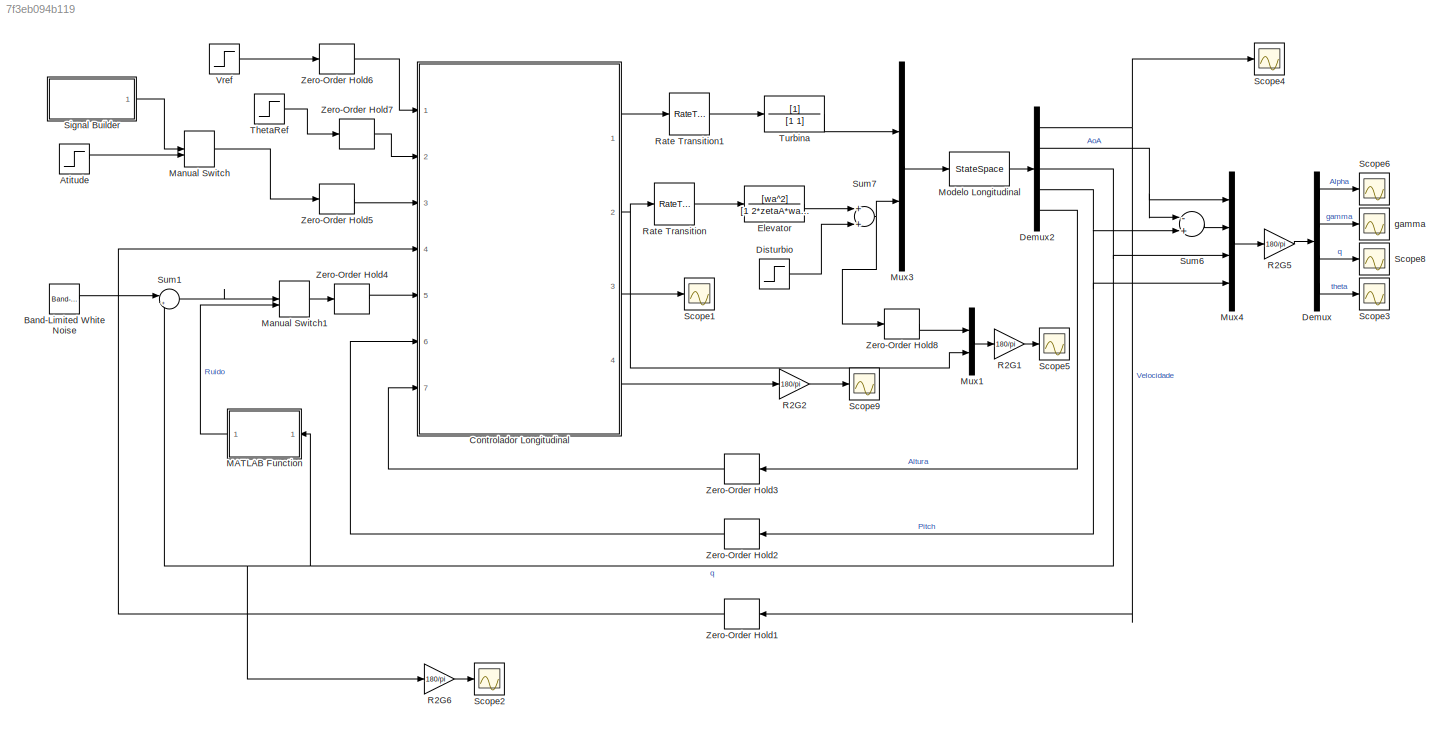
MODEL slx_7f3eb094b119
KIND model
CONFIG InitFcn = Alt = 2;\nVel =4;\nwa = 72;\nzetaA = 0.7;\nload('../../Ganhos/BV9_30_03/GanhosTanqueHalf')\nload('../../Dados_Input_Ganhos/BV9_30_03/sstanqueHalf_0')\n[n,d] = butter(2,15*2*pi,'s')\nF = tf(n,d);\nFd = c2d(F,0.01,'tustin');\n[num, dem] = tfdata(Fd);\nTa = 100;
BLOCK [Step] Atitude
  After = 100*1
  SampleTime = 0
BLOCK [Reference] Band-Limited White Noise  REF=simulink/Sources/Band-Limited
White Noise
  Cov = 0.004^2*0.002
  Ports = [0, 1]
  SourceBlock = simulink/Sources/Band-Limited\nWhite Noise
  SourceType = Band-Limited White Noise.
  Ts = 0.002
  VectorParams1D = on
  seed = [23341]
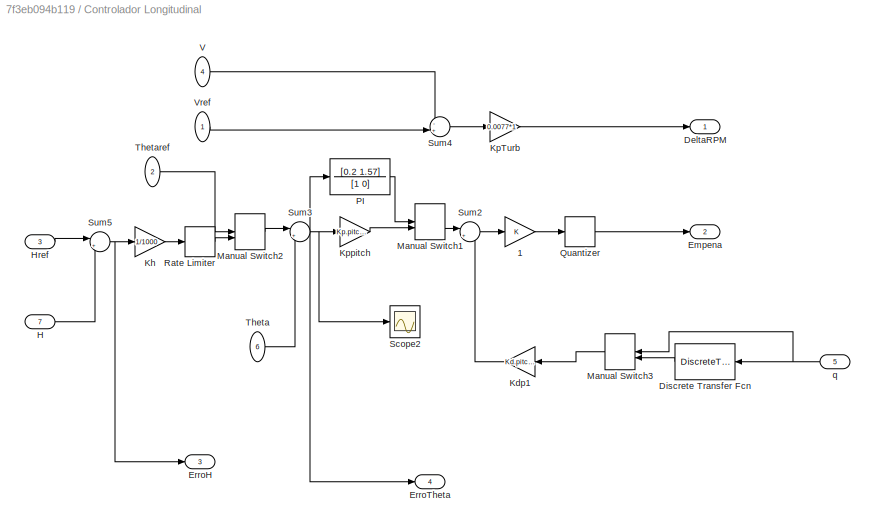
BLOCK [SubSystem] Controlador Longitudinal
  FunctionWithSeparateData = off
  MaskHideContents = off
  MinAlgLoopOccurrences = off
  Opaque = off
  Ports = [7, 4]
  PropExecContextOutsideSubsystem = off
  RTWSystemCode = Auto
  RequestExecContextInheritance = off
BLOCK [Gain] Controlador Longitudinal/1
  OutDataTypeStr = Inherit: Inherit via internal rule
  ParamDataTypeStr = Inherit: Inherit via internal rule
  SaturateOnIntegerOverflow = off
BLOCK [Outport] Controlador Longitudinal/DeltaRPM
  IconDisplay = Port number
BLOCK [DiscreteTransferFcn] Controlador Longitudinal/Discrete Transfer Fcn
  Denominator = [dem{1}]
  InputPortMap = u0
  Numerator = [num{1}]
  Ports = [1, 1]
BLOCK [Outport] Controlador Longitudinal/Empena
  IconDisplay = Port number
  Port = 2
BLOCK [Outport] Controlador Longitudinal/ErroH
  IconDisplay = Port number
  Port = 3
BLOCK [Outport] Controlador Longitudinal/ErroTheta
  IconDisplay = Port number
  Port = 4
BLOCK [Inport] Controlador Longitudinal/H
  IconDisplay = Port number
  Port = 7
BLOCK [Inport] Controlador Longitudinal/Href
  IconDisplay = Port number
  Port = 3
BLOCK [Gain] Controlador Longitudinal/Kdp1
  Gain = Kd.pitch(Alt,Vel)
  OutDataTypeStr = Inherit: Inherit via internal rule
  ParamDataTypeStr = Inherit: Inherit via internal rule
  SaturateOnIntegerOverflow = off
BLOCK [Gain] Controlador Longitudinal/Kh
  Gain = 1/1000
  OutDataTypeStr = Inherit: Inherit via internal rule
  ParamDataTypeStr = Inherit: Inherit via internal rule
  SaturateOnIntegerOverflow = off
BLOCK [Gain] Controlador Longitudinal/KpTurb
  Gain = 0.0077*1
  OutDataTypeStr = Inherit: Inherit via internal rule
  ParamDataTypeStr = Inherit: Inherit via internal rule
  SaturateOnIntegerOverflow = off
BLOCK [Gain] Controlador Longitudinal/Kppitch
  Gain = Kp.pitch(Alt,Vel)
  OutDataTypeStr = Inherit: Inherit via internal rule
  ParamDataTypeStr = Inherit: Inherit via internal rule
  SaturateOnIntegerOverflow = off
BLOCK [ManualSwitch] Controlador Longitudinal/Manual Switch1
  CurrentSetting = 0
BLOCK [ManualSwitch] Controlador Longitudinal/Manual Switch2
  CurrentSetting = 0
BLOCK [ManualSwitch] Controlador Longitudinal/Manual Switch3
  CurrentSetting = 0
BLOCK [TransferFcn] Controlador Longitudinal/PI
  Commented = through
  Denominator = [1 0]
  Numerator = [0.2 1.57]
BLOCK [Quantizer] Controlador Longitudinal/Quantizer
  QuantizationInterval = 0.005*pi/180
BLOCK [RateLimiter] Controlador Longitudinal/Rate Limiter
  FallingSlewLimit = -1*pi/180
  RisingSlewLimit = 1*pi/180
  SampleTimeMode = inherited
BLOCK [Scope] Controlador Longitudinal/Scope2
  DataFormat = StructureWithTime
  Floating = off
  LimitDataPoints = off
  NumInputPorts = 1
  Ports = [1]
  SampleTime = 0
  SaveName = ScopeData7
  ShowLegends = off
  ZoomMode = yonly
BLOCK [Sum] Controlador Longitudinal/Sum2
  IconShape = round
  InputSameDT = off
  Inputs = |+-
  OutDataTypeStr = Inherit: Inherit via internal rule
  Ports = [2, 1]
  SaturateOnIntegerOverflow = off
BLOCK [Sum] Controlador Longitudinal/Sum3
  IconShape = round
  InputSameDT = off
  Inputs = |+-
  OutDataTypeStr = Inherit: Inherit via internal rule
  Ports = [2, 1]
  SaturateOnIntegerOverflow = off
BLOCK [Sum] Controlador Longitudinal/Sum4
  IconShape = round
  InputSameDT = off
  Inputs = -+|
  OutDataTypeStr = Inherit: Inherit via internal rule
  Ports = [2, 1]
  SaturateOnIntegerOverflow = off
BLOCK [Sum] Controlador Longitudinal/Sum5
  IconShape = round
  InputSameDT = off
  Inputs = |+-
  OutDataTypeStr = Inherit: Inherit via internal rule
  Ports = [2, 1]
  SaturateOnIntegerOverflow = off
BLOCK [Inport] Controlador Longitudinal/Theta
  IconDisplay = Port number
  Port = 6
BLOCK [Inport] Controlador Longitudinal/Thetaref
  IconDisplay = Port number
  Port = 2
BLOCK [Inport] Controlador Longitudinal/V
  IconDisplay = Port number
  Port = 4
BLOCK [Inport] Controlador Longitudinal/Vref
  IconDisplay = Port number
BLOCK [Inport] Controlador Longitudinal/q
  IconDisplay = Port number
  Port = 5
BLOCK [Demux] Demux
  DisplayOption = bar
  Ports = [1, 4]
BLOCK [Demux] Demux2
  DisplayOption = bar
  Outputs = 5
  Ports = [1, 5]
BLOCK [Step] Disturbio
  After = pi/180*0
  SampleTime = 0
BLOCK [TransferFcn] Elevator
  Denominator = [1 2*zetaA*wa wa^2]
  Numerator = [wa^2]
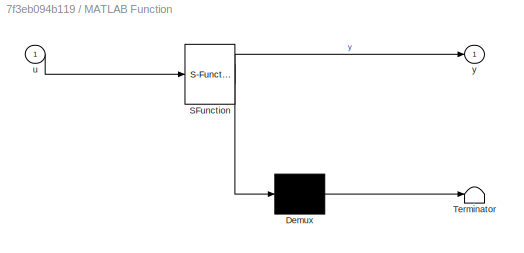
BLOCK [SubSystem] MATLAB Function
  ErrorFcn = Stateflow.Translate.translate
  FunctionWithSeparateData = off
  MaskHideContents = off
  MinAlgLoopOccurrences = off
  Opaque = off
  PermitHierarchicalResolution = ExplicitOnly
  Ports = [1, 1]
  PropExecContextOutsideSubsystem = off
  RTWSystemCode = Auto
  RequestExecContextInheritance = off
  SFBlockType = MATLAB Function
  TreatAsAtomicUnit = on
BLOCK [Demux] MATLAB Function/ Demux 
  Outputs = 1
  Ports = [1, 1]
BLOCK [S-Function] MATLAB Function/ SFunction 
  EnableBusSupport = on
  FunctionName = sf_sfun
  PortCounts = [1 2]
  Ports = [1, 2]
  Tag = Stateflow S-Function ControladorTurbina 2
BLOCK [Terminator] MATLAB Function/ Terminator 
BLOCK [Inport] MATLAB Function/u
  IconDisplay = Port number
BLOCK [Outport] MATLAB Function/y
  IconDisplay = Port number
BLOCK [ManualSwitch] Manual Switch
BLOCK [ManualSwitch] Manual Switch1
  CurrentSetting = 0
BLOCK [StateSpace] Modelo Longitudinal
  A = Plano_Long(Alt,Vel).A
  B = Plano_Long(Alt,Vel).B
  C = eye(5)
  D = zeros(5,2)
  Ports = [1, 1]
  X0 = [0 0 0 0 0]'
BLOCK [Mux] Mux1
  DisplayOption = bar
  Inputs = 2
  Ports = [2, 1]
BLOCK [Mux] Mux3
  DisplayOption = bar
  Inputs = 2
  Ports = [2, 1]
BLOCK [Mux] Mux4
  DisplayOption = bar
  Ports = [4, 1]
BLOCK [Gain] R2G1
  Gain = 180/pi
  OutDataTypeStr = Inherit: Inherit via internal rule
  ParamDataTypeStr = Inherit: Inherit via internal rule
  SaturateOnIntegerOverflow = off
BLOCK [Gain] R2G2
  Gain = 180/pi
  OutDataTypeStr = Inherit: Inherit via internal rule
  ParamDataTypeStr = Inherit: Inherit via internal rule
  SaturateOnIntegerOverflow = off
BLOCK [Gain] R2G5
  Gain = 180/pi
  OutDataTypeStr = Inherit: Inherit via internal rule
  ParamDataTypeStr = Inherit: Inherit via internal rule
  SaturateOnIntegerOverflow = off
BLOCK [Gain] R2G6
  Gain = 180/pi
  OutDataTypeStr = Inherit: Inherit via internal rule
  ParamDataTypeStr = Inherit: Inherit via internal rule
  SaturateOnIntegerOverflow = off
BLOCK [RateTransition] Rate Transition
BLOCK [RateTransition] Rate Transition1
BLOCK [Scope] Scope1
  DataFormat = StructureWithTime
  Floating = off
  LimitDataPoints = off
  NumInputPorts = 1
  Ports = [1]
  SampleTime = 0
  ShowLegends = off
  ZoomMode = yonly
BLOCK [Scope] Scope2
  DataFormat = StructureWithTime
  Floating = off
  LimitDataPoints = off
  NumInputPorts = 1
  Ports = [1]
  SampleTime = 0
  SaveName = ScopeData1
  ShowLegends = off
  ZoomMode = yonly
BLOCK [Scope] Scope3
  DataFormat = StructureWithTime
  Floating = off
  LimitDataPoints = off
  NumInputPorts = 1
  Ports = [1]
  SampleTime = 0
  SaveName = ScopeData3
  ShowLegends = off
  ZoomMode = xonly
BLOCK [Scope] Scope4
  Floating = off
  LimitDataPoints = off
  NumInputPorts = 1
  Ports = [1]
  SampleTime = 0
  SaveName = ScopeData2
  SaveToWorkspace = on
  ShowLegends = off
  YMax = 1
  YMin = 0.999999
  ZoomMode = yonly
BLOCK [Scope] Scope5
  DataFormat = StructureWithTime
  Floating = off
  LimitDataPoints = off
  NumInputPorts = 1
  Ports = [1]
  SampleTime = 0
  SaveName = ScopeData4
  ShowLegends = off
  TimeRange = 4.922600619195046
  YMax = 0.08720043572984756
  YMin = -0.06835511982570799
  ZoomMode = xonly
BLOCK [Scope] Scope6
  DataFormat = StructureWithTime
  Floating = off
  LimitDataPoints = off
  NumInputPorts = 1
  Ports = [1]
  SampleTime = 0
  SaveName = ScopeData6
  ShowLegends = off
  ZoomMode = yonly
BLOCK [Scope] Scope8
  DataFormat = StructureWithTime
  Floating = off
  LimitDataPoints = off
  NumInputPorts = 1
  Ports = [1]
  SampleTime = 0
  SaveName = ScopeData8
  ShowLegends = off
  ZoomMode = yonly
BLOCK [Scope] Scope9
  DataFormat = StructureWithTime
  Floating = off
  LimitDataPoints = off
  NumInputPorts = 1
  Ports = [1]
  SampleTime = 0
  SaveName = ScopeData9
  ShowLegends = off
  ZoomMode = yonly
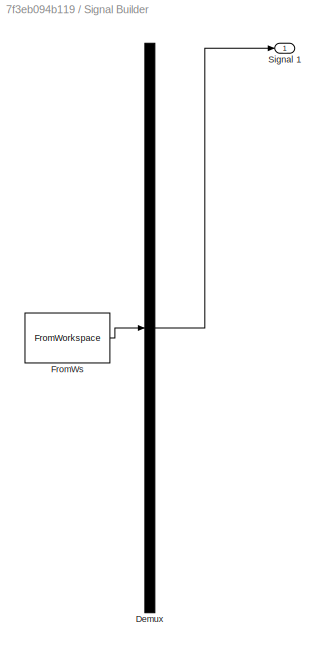
BLOCK [SubSystem] Signal Builder
  ClipboardFcn = sigbuilder_block('clipboard');
  CloseFcn = sigbuilder_block('close');
  ContinueFcn = sigbuilder_block('continue');
  CopyFcn = sigbuilder_block('copy');
  DeleteFcn = sigbuilder_block('delete');
  FunctionWithSeparateData = off
  LoadFcn = sigbuilder_block('load');
  MaskHideContents = on
  MinAlgLoopOccurrences = off
  ModelCloseFcn = sigbuilder_block('modelClose');
  NameChangeFcn = sigbuilder_block('namechange');
  Opaque = off
  OpenFcn = sigbuilder_block('open',[437.25 199.5 550.5 399.75 ]);
  PauseFcn = sigbuilder_block('pause');
  Ports = [0, 1]
  PreSaveFcn = sigbuilder_block('preSave');
  PropExecContextOutsideSubsystem = off
  RTWSystemCode = Auto
  RequestExecContextInheritance = off
  StartFcn = sigbuilder_block('start');
  StopFcn = sigbuilder_block('stop');
  Tag = STV Subsys
BLOCK [Demux] Signal Builder/Demux
  Outputs = 1
  Ports = [1, 1]
  Tag = STV Demux
BLOCK [FromWorkspace] Signal Builder/FromWs
  SampleTime = 0
  Tag = STV FromWs
  VariableName = tuvar
  ZeroCross = on
BLOCK [Outport] Signal Builder/Signal 1
  IconDisplay = Port number
  Tag = STV Outport
BLOCK [Sum] Sum1
  IconShape = round
  InputSameDT = off
  Inputs = |++
  OutDataTypeStr = Inherit: Inherit via internal rule
  Ports = [2, 1]
  SaturateOnIntegerOverflow = off
BLOCK [Sum] Sum6
  InputSameDT = off
  Inputs = -+
  OutDataTypeStr = Inherit: Inherit via internal rule
  Ports = [2, 1]
  SaturateOnIntegerOverflow = off
BLOCK [Sum] Sum7
  InputSameDT = off
  OutDataTypeStr = Inherit: Inherit via internal rule
  Ports = [2, 1]
  SaturateOnIntegerOverflow = off
BLOCK [Step] ThetaRef
  After = 1*pi/180*1
  SampleTime = 0
BLOCK [TransferFcn] Turbina
  Denominator = [1 1]
BLOCK [Step] Vref
  After = 10*0
  SampleTime = 0
BLOCK [ZeroOrderHold] Zero-Order Hold1
  SampleTime = 1/Ta
BLOCK [ZeroOrderHold] Zero-Order Hold2
  SampleTime = 1/Ta
BLOCK [ZeroOrderHold] Zero-Order Hold3
  SampleTime = 1/Ta
BLOCK [ZeroOrderHold] Zero-Order Hold4
  SampleTime = 1/Ta
BLOCK [ZeroOrderHold] Zero-Order Hold5
  SampleTime = 1/Ta
BLOCK [ZeroOrderHold] Zero-Order Hold6
  SampleTime = 1/Ta
BLOCK [ZeroOrderHold] Zero-Order Hold7
  SampleTime = 1/Ta
BLOCK [ZeroOrderHold] Zero-Order Hold8
  SampleTime = 1/Ta
BLOCK [Scope] gamma
  DataFormat = StructureWithTime
  Floating = off
  LimitDataPoints = off
  NumInputPorts = 1
  Ports = [1]
  SampleTime = 0
  SaveName = ScopeData5
  ShowLegends = off
  ZoomMode = yonly
LINE Atitude:1 -> Manual Switch:2
LINE Band-Limited White Noise:1 -> Sum1:1
LINE Controlador Longitudinal/1:1 -> Controlador Longitudinal/Quantizer:1
LINE Controlador Longitudinal/Discrete Transfer Fcn:1 -> Controlador Longitudinal/Manual Switch3:2
LINE Controlador Longitudinal/H:1 -> Controlador Longitudinal/Sum5:2
LINE Controlador Longitudinal/Href:1 -> Controlador Longitudinal/Sum5:1
LINE Controlador Longitudinal/Kdp1:1 -> Controlador Longitudinal/Sum2:2
LINE Controlador Longitudinal/Kh:1 -> Controlador Longitudinal/Rate Limiter:1
LINE Controlador Longitudinal/KpTurb:1 -> Controlador Longitudinal/DeltaRPM:1
LINE Controlador Longitudinal/Kppitch:1 -> Controlador Longitudinal/Manual Switch1:2
LINE Controlador Longitudinal/Manual Switch1:1 -> Controlador Longitudinal/Sum2:1
LINE Controlador Longitudinal/Manual Switch2:1 -> Controlador Longitudinal/Sum3:1
LINE Controlador Longitudinal/Manual Switch3:1 -> Controlador Longitudinal/Kdp1:1
LINE Controlador Longitudinal/PI:1 -> Controlador Longitudinal/Manual Switch1:1
LINE Controlador Longitudinal/Quantizer:1 -> Controlador Longitudinal/Empena:1
LINE Controlador Longitudinal/Rate Limiter:1 -> Controlador Longitudinal/Manual Switch2:2
LINE Controlador Longitudinal/Sum2:1 -> Controlador Longitudinal/1:1
NET Controlador Longitudinal/Sum3:1 -> Controlador Longitudinal/ErroTheta:1, Controlador Longitudinal/Kppitch:1, Controlador Longitudinal/PI:1, Controlador Longitudinal/Scope2:1
LINE Controlador Longitudinal/Sum4:1 -> Controlador Longitudinal/KpTurb:1
NET Controlador Longitudinal/Sum5:1 -> Controlador Longitudinal/ErroH:1, Controlador Longitudinal/Kh:1
LINE Controlador Longitudinal/Theta:1 -> Controlador Longitudinal/Sum3:2
LINE Controlador Longitudinal/Thetaref:1 -> Controlador Longitudinal/Manual Switch2:1
LINE Controlador Longitudinal/V:1 -> Controlador Longitudinal/Sum4:1
LINE Controlador Longitudinal/Vref:1 -> Controlador Longitudinal/Sum4:2
NET Controlador Longitudinal/q:1 -> Controlador Longitudinal/Discrete Transfer Fcn:1, Controlador Longitudinal/Manual Switch3:1
LINE Controlador Longitudinal:1 -> Rate Transition1:1
NET Controlador Longitudinal:2 -> Mux1:2, Rate Transition:1
LINE Controlador Longitudinal:3 -> Scope1:1
LINE Controlador Longitudinal:4 -> R2G2:1
NET Demux2:1 -> Scope4:1, Zero-Order Hold1:1
NET Demux2:2 -> Mux4:1, Sum6:1
NET Demux2:3 -> MATLAB Function:1, Mux4:3, R2G6:1, Sum1:2
NET Demux2:4 -> Mux4:4, Sum6:2, Zero-Order Hold2:1
LINE Demux2:5 -> Zero-Order Hold3:1
LINE Demux:1 -> Scope6:1
LINE Demux:2 -> gamma:1
LINE Demux:3 -> Scope8:1
LINE Demux:4 -> Scope3:1
LINE Disturbio:1 -> Sum7:2
LINE Elevator:1 -> Sum7:1
LINE MATLAB Function:1 -> Manual Switch1:2
LINE Manual Switch1:1 -> Zero-Order Hold4:1
LINE Manual Switch:1 -> Zero-Order Hold5:1
LINE Modelo Longitudinal:1 -> Demux2:1
LINE Mux1:1 -> R2G1:1
LINE Mux3:1 -> Modelo Longitudinal:1
LINE Mux4:1 -> R2G5:1
LINE R2G1:1 -> Scope5:1
LINE R2G2:1 -> Scope9:1
LINE R2G5:1 -> Demux:1
LINE R2G6:1 -> Scope2:1
LINE Rate Transition1:1 -> Turbina:1
LINE Rate Transition:1 -> Elevator:1
LINE Signal Builder:1 -> Manual Switch:1
LINE Sum1:1 -> Manual Switch1:1
LINE Sum6:1 -> Mux4:2
NET Sum7:1 -> Mux3:2, Zero-Order Hold8:1
LINE ThetaRef:1 -> Zero-Order Hold7:1
LINE Turbina:1 -> Mux3:1
LINE Vref:1 -> Zero-Order Hold6:1
LINE Zero-Order Hold1:1 -> Controlador Longitudinal:4
LINE Zero-Order Hold2:1 -> Controlador Longitudinal:6
LINE Zero-Order Hold3:1 -> Controlador Longitudinal:7
LINE Zero-Order Hold4:1 -> Controlador Longitudinal:5
LINE Zero-Order Hold5:1 -> Controlador Longitudinal:3
LINE Zero-Order Hold6:1 -> Controlador Longitudinal:1
LINE Zero-Order Hold7:1 -> Controlador Longitudinal:2
LINE Zero-Order Hold8:1 -> Mux1:1
note: NET lines group one-source signal fan-out (src -> all destinations, sorted); 1:1 wires keep LINE
